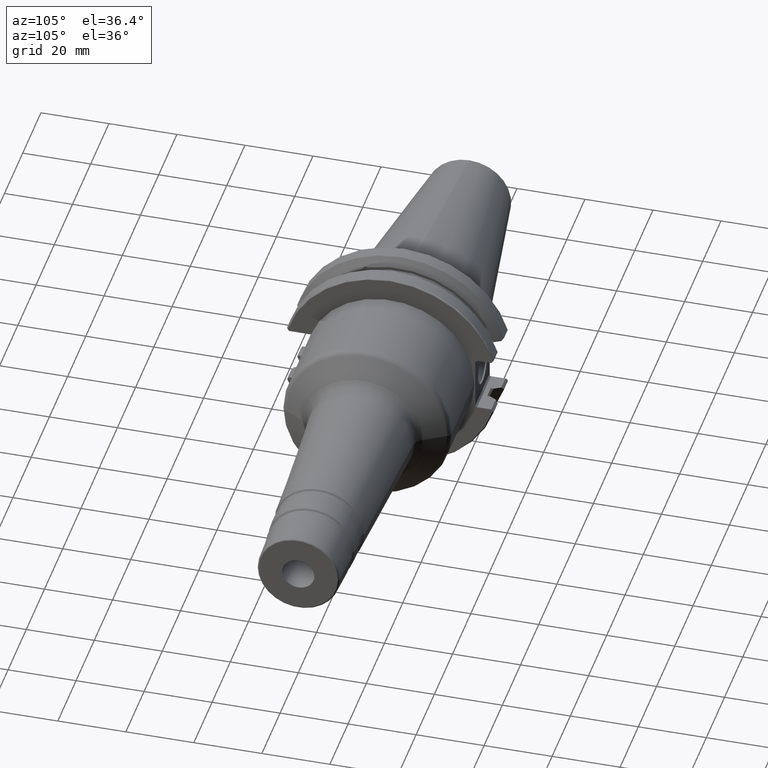
[diagram: clean part render]
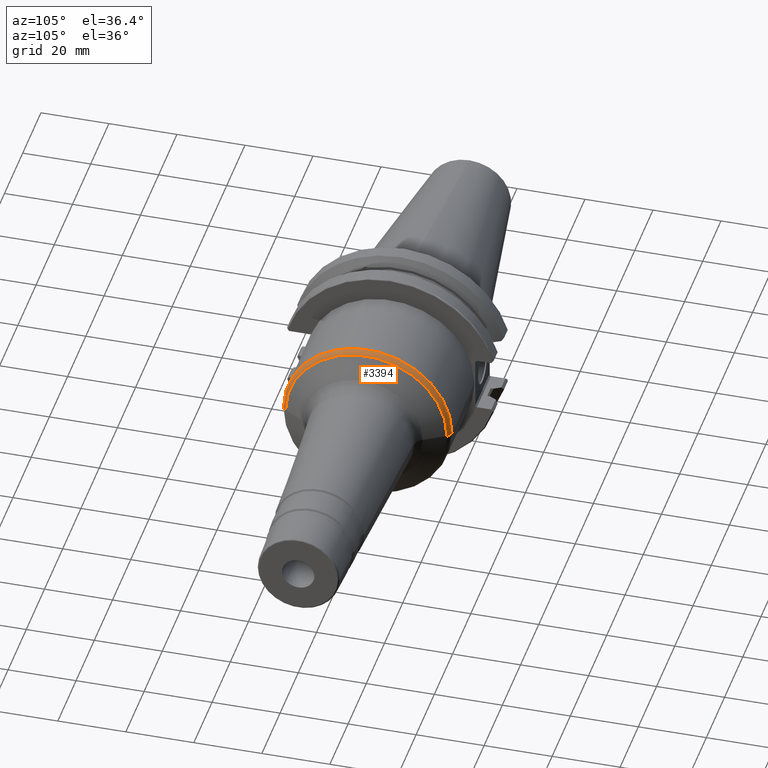
[diagram: same view with one face highlighted and labeled with its STEP entity id]
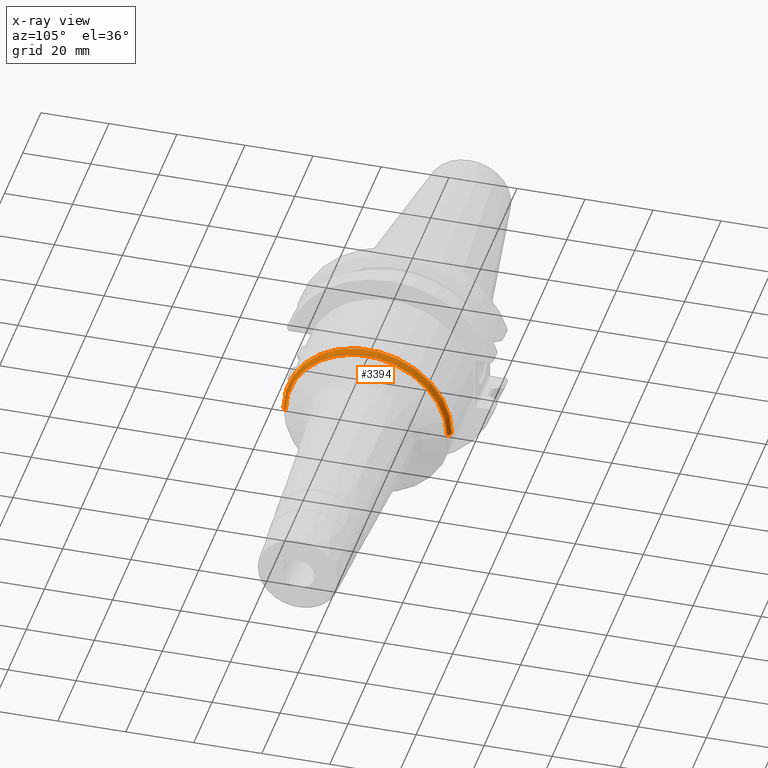
[diagram: x-ray of the same camera — body ghosted, the highlighted face saturated]
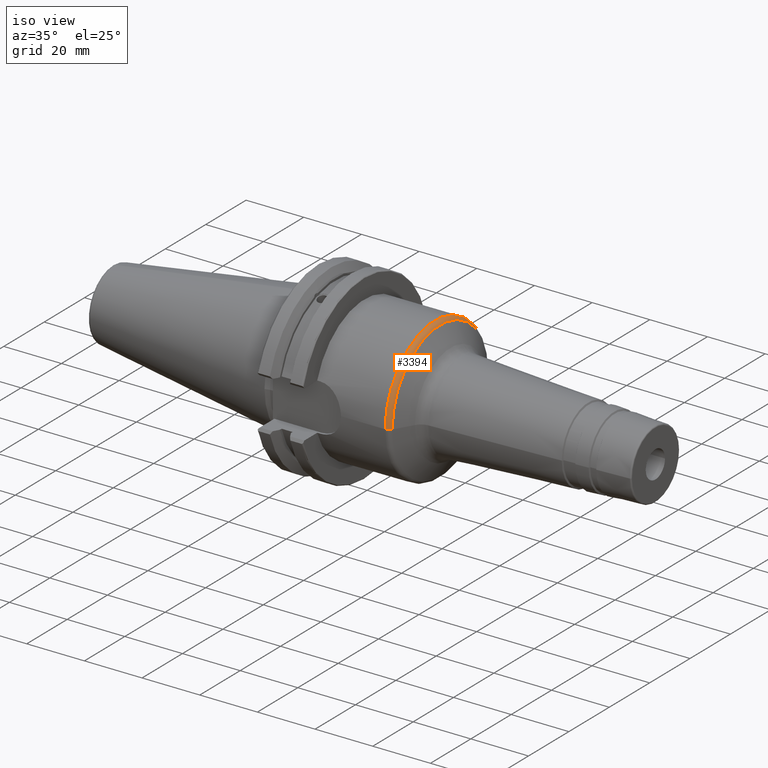
[diagram: same view with one face highlighted and labeled with its STEP entity id]
A machine part, auxiliary view. The second image highlights one B-rep face of the part: STEP entity #3394.
The next image is the same camera in x-ray: the body ghosted, the highlighted face saturated — about 0% of this face is hidden behind the body in this view.
A second angle (iso view) of the same face is appended — the face is thin or edge-on in the first view.
In plain terms, the highlighted toroidal blend (fillet) surface has major radius 22.75 mm and minor (blend) radius 2 mm.
Its self-contained STEP definition (entity closure, byte-faithful):
#842=CARTESIAN_POINT('',(4.358933496917E1,0.E0,0.E0));
#843=DIRECTION('',(-1.E0,0.E0,0.E0));
#844=DIRECTION('',(0.E0,-1.E0,0.E0));
#845=AXIS2_PLACEMENT_3D('',#842,#843,#844);
#880=CARTESIAN_POINT('',(4.358933496917E1,2.275E1,6.456215007056E-10));
#881=DIRECTION('',(0.E0,2.837896931340E-11,-1.E0));
#882=DIRECTION('',(1.140421090895E-12,1.E0,2.837896931340E-11));
#883=AXIS2_PLACEMENT_3D('',#880,#881,#882);
#885=CARTESIAN_POINT('',(4.358933496917E1,-2.275E1,-6.456183365700E-10));
#886=DIRECTION('',(0.E0,-2.837883053552E-11,1.E0));
#887=DIRECTION('',(1.133315663537E-12,-1.E0,-2.837883053552E-11));
#888=AXIS2_PLACEMENT_3D('',#885,#886,#887);
#895=CARTESIAN_POINT('',(4.532138577673E1,0.E0,0.E0));
#896=DIRECTION('',(-1.E0,0.E0,0.E0));
#897=DIRECTION('',(0.E0,-1.E0,0.E0));
#898=AXIS2_PLACEMENT_3D('',#895,#896,#897);
#2357=CARTESIAN_POINT('',(4.358933496917E1,2.475E1,0.E0));
#2358=CARTESIAN_POINT('',(4.358933496917E1,-2.475E1,0.E0));
#2359=VERTEX_POINT('',#2357);
#2360=VERTEX_POINT('',#2358);
#2361=CARTESIAN_POINT('',(4.532138577673E1,2.375E1,0.E0));
#2362=CARTESIAN_POINT('',(4.532138577673E1,-2.375E1,0.E0));
#2363=VERTEX_POINT('',#2361);
#2364=VERTEX_POINT('',#2362);
#3382=CARTESIAN_POINT('',(4.358933496917E1,0.E0,0.E0));
#3383=DIRECTION('',(1.E0,0.E0,0.E0));
#3384=DIRECTION('',(0.E0,-9.999226402113E-1,-1.243839189224E-2));
#3385=AXIS2_PLACEMENT_3D('',#3382,#3383,#3384);
#3386=TOROIDAL_SURFACE('',#3385,2.275E1,2.E0);
#3387=ORIENTED_EDGE('',*,*,#3330,.T.);
#3388=ORIENTED_EDGE('',*,*,#3377,.T.);
#3390=ORIENTED_EDGE('',*,*,#3389,.F.);
#3391=ORIENTED_EDGE('',*,*,#3373,.F.);
#3392=EDGE_LOOP('',(#3387,#3388,#3390,#3391));
#3393=FACE_OUTER_BOUND('',#3392,.F.);
#3394=ADVANCED_FACE('',(#3393),#3386,.T.);
#846=CIRCLE('',#845,2.475E1);
#884=CIRCLE('',#883,2.E0);
#889=CIRCLE('',#888,2.E0);
#899=CIRCLE('',#898,2.375E1);
#3330=EDGE_CURVE('',#2360,#2359,#846,.T.);
#3373=EDGE_CURVE('',#2360,#2364,#889,.T.);
#3377=EDGE_CURVE('',#2359,#2363,#884,.T.);
#3389=EDGE_CURVE('',#2364,#2363,#899,.T.);